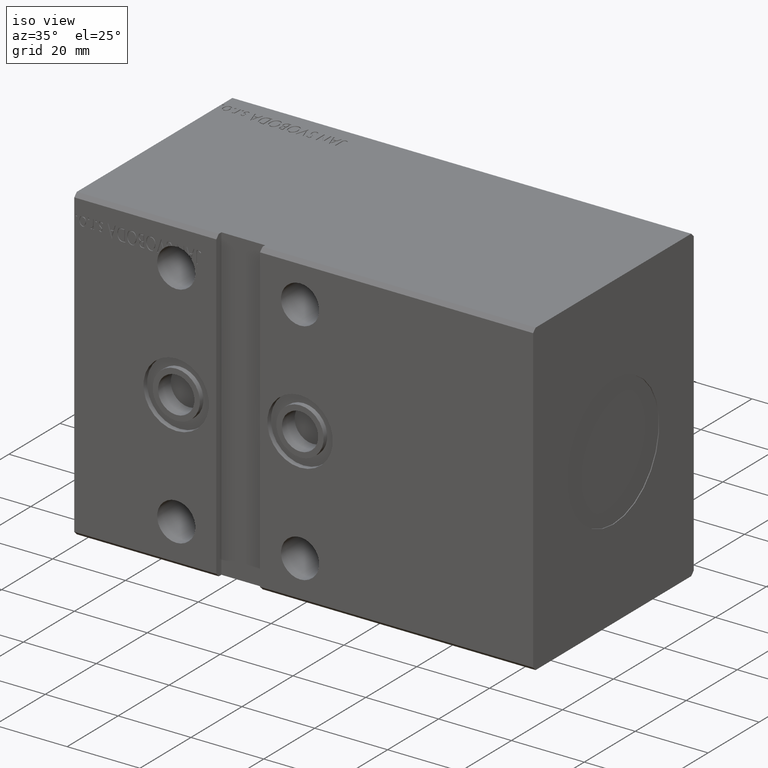
[diagram: clean part render]
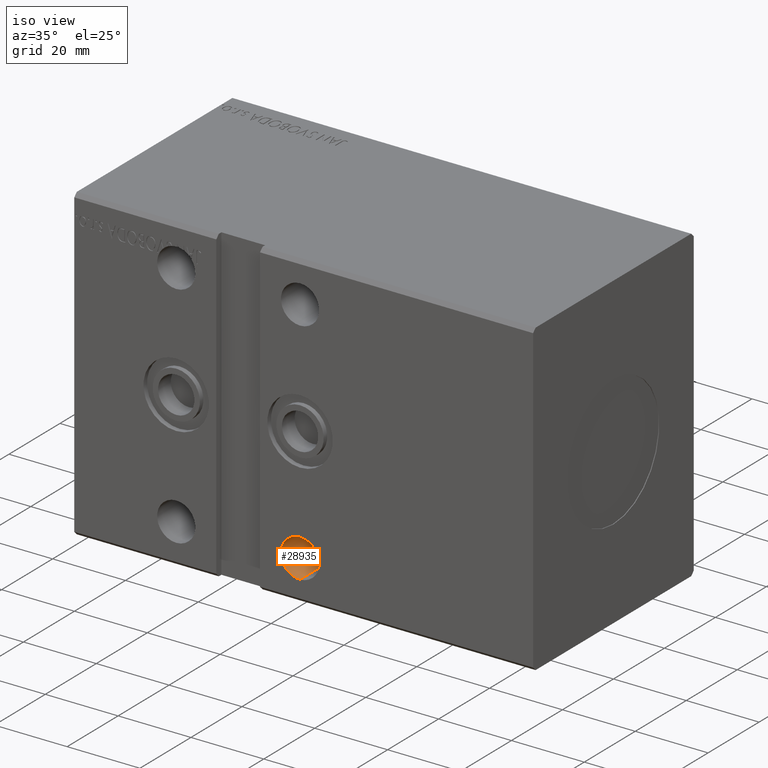
[diagram: same view with one face highlighted and labeled with its STEP entity id]
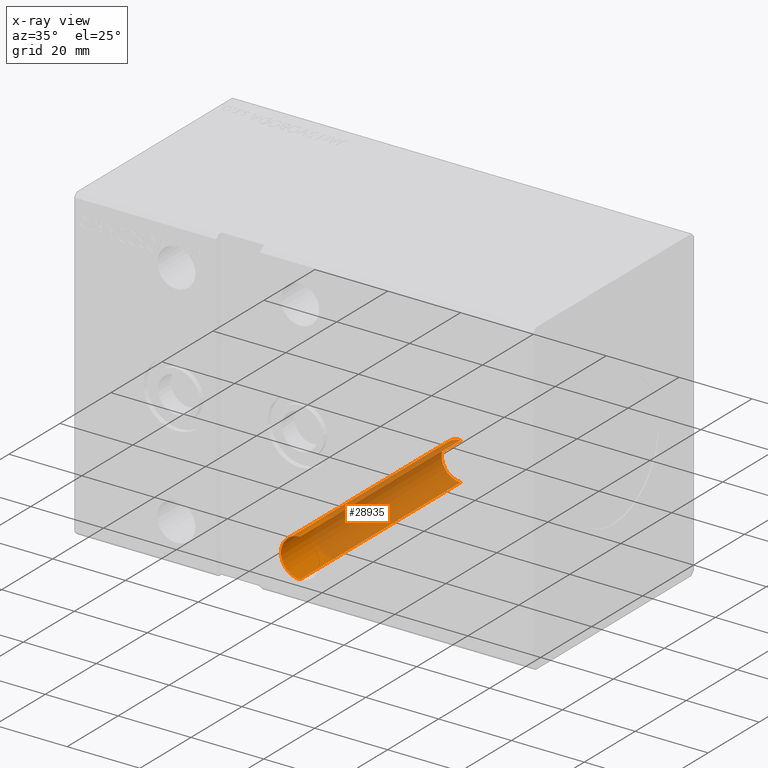
[diagram: x-ray of the same camera — body ghosted, the highlighted face saturated]
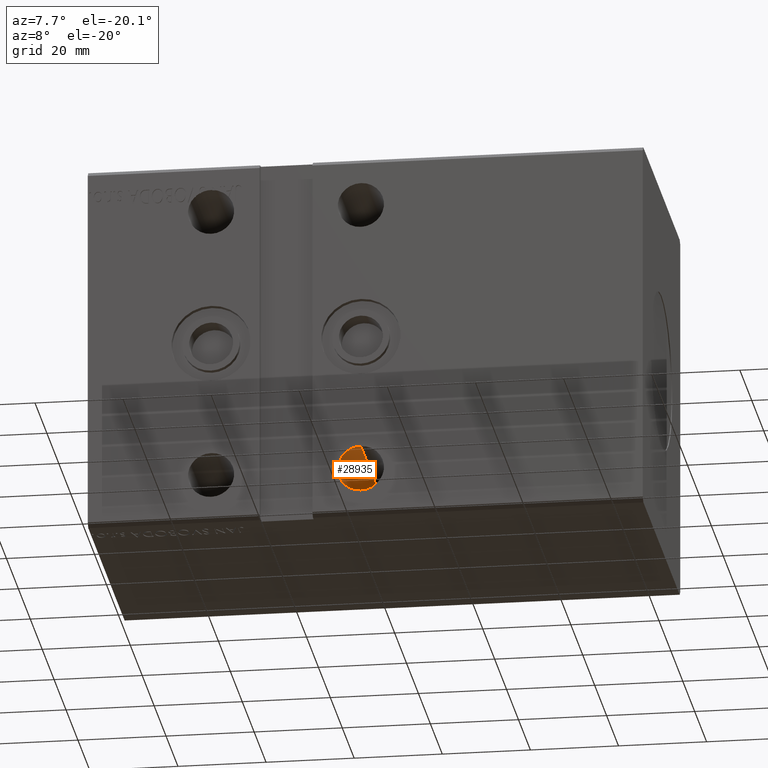
[diagram: same view with one face highlighted and labeled with its STEP entity id]
A machine part, iso view. The second image highlights one B-rep face of the part: STEP entity #28935.
The next image is the same camera in x-ray: the body ghosted, the highlighted face saturated — about 78% of this face is hidden behind the body in this view.
A second angle (auxiliary view) of the same face is appended — the face is thin or edge-on in the first view.
In plain terms, the highlighted cylindrical surface (edge-blend (fillet) strip) has radius 5.25 mm, axis along (-0, -1, -0).
Its self-contained STEP definition (entity closure, byte-faithful):
#15 = EDGE_CURVE ( 'NONE', #345, #18154, #15213, .T. ) ;
#345 = VERTEX_POINT ( 'NONE', #14562 ) ;
#1273 = EDGE_LOOP ( 'NONE', ( #1948, #5811, #20054, #38767 ) ) ;
#1948 = ORIENTED_EDGE ( 'NONE', *, *, #6388, .F. ) ;
#3715 = CIRCLE ( 'NONE', #26671, 5.249999999999997335 ) ;
#4119 = EDGE_CURVE ( 'NONE', #18154, #28999, #18899, .T. ) ;
#5527 = CARTESIAN_POINT ( 'NONE',  ( 62.00000000000000711, 31.50000000000002842, -26.24999999999999645 ) ) ;
#5589 = EDGE_CURVE ( 'NONE', #25466, #28999, #12370, .T. ) ;
#5811 = ORIENTED_EDGE ( 'NONE', *, *, #5589, .T. ) ;
#6388 = EDGE_CURVE ( 'NONE', #25466, #345, #3715, .T. ) ;
#6926 = AXIS2_PLACEMENT_3D ( 'NONE', #24356, #21490, #9356 ) ;
#8554 = CYLINDRICAL_SURFACE ( 'NONE', #6926, 5.249999999999997335 ) ;
#8660 = DIRECTION ( 'NONE',  ( -0.000000000000000000, -1.000000000000000000, -5.507058653894625853E-17 ) ) ;
#9356 = DIRECTION ( 'NONE',  ( 0.000000000000000000, 0.000000000000000000, -1.000000000000000000 ) ) ;
#12235 = VECTOR ( 'NONE', #25717, 1000.000000000000000 ) ;
#12261 = VECTOR ( 'NONE', #8660, 1000.000000000000000 ) ;
#12370 = LINE ( 'NONE', #22027, #12235 ) ;
#14562 = CARTESIAN_POINT ( 'NONE',  ( 62.00000000000000711, 31.50000000000002842, -36.74999999999999289 ) ) ;
#15213 = LINE ( 'NONE', #27756, #12261 ) ;
#15559 = DIRECTION ( 'NONE',  ( 0.000000000000000000, 0.000000000000000000, -1.000000000000000000 ) ) ;
#18154 = VERTEX_POINT ( 'NONE', #38947 ) ;
#18899 = CIRCLE ( 'NONE', #26784, 5.249999999999997335 ) ;
#20054 = ORIENTED_EDGE ( 'NONE', *, *, #4119, .F. ) ;
#21490 = DIRECTION ( 'NONE',  ( -0.000000000000000000, -1.000000000000000000, -5.507058653894625853E-17 ) ) ;
#22027 = CARTESIAN_POINT ( 'NONE',  ( 62.00000000000000711, 31.50000000000002842, -26.24999999999999645 ) ) ;
#24356 = CARTESIAN_POINT ( 'NONE',  ( 62.00000000000000711, 31.50000000000002842, -31.49999999999999289 ) ) ;
#24991 = CARTESIAN_POINT ( 'NONE',  ( 62.00000000000000711, -31.50000000000000000, -31.50000000000000000 ) ) ;
#25466 = VERTEX_POINT ( 'NONE', #5527 ) ;
#25717 = DIRECTION ( 'NONE',  ( -0.000000000000000000, -1.000000000000000000, -5.507058653894625853E-17 ) ) ;
#26671 = AXIS2_PLACEMENT_3D ( 'NONE', #28505, #31188, #15559 ) ;
#26784 = AXIS2_PLACEMENT_3D ( 'NONE', #24991, #37529, #34663 ) ;
#27756 = CARTESIAN_POINT ( 'NONE',  ( 62.00000000000000711, 31.50000000000002842, -36.74999999999999289 ) ) ;
#27849 = FACE_OUTER_BOUND ( 'NONE', #1273, .T. ) ;
#28505 = CARTESIAN_POINT ( 'NONE',  ( 62.00000000000000711, 31.50000000000002842, -31.49999999999999289 ) ) ;
#28935 = ADVANCED_FACE ( 'NONE', ( #27849 ), #8554, .F. ) ;
#28999 = VERTEX_POINT ( 'NONE', #35043 ) ;
#31188 = DIRECTION ( 'NONE',  ( 0.000000000000000000, -1.000000000000000000, -5.507058653894625853E-17 ) ) ;
#34663 = DIRECTION ( 'NONE',  ( 0.000000000000000000, 0.000000000000000000, 1.000000000000000000 ) ) ;
#35043 = CARTESIAN_POINT ( 'NONE',  ( 62.00000000000000711, -31.50000000000000000, -26.25000000000000355 ) ) ;
#37529 = DIRECTION ( 'NONE',  ( -0.000000000000000000, 1.000000000000000000, 0.000000000000000000 ) ) ;
#38767 = ORIENTED_EDGE ( 'NONE', *, *, #15, .F. ) ;
#38947 = CARTESIAN_POINT ( 'NONE',  ( 62.00000000000000711, -31.50000000000000000, -36.75000000000000000 ) ) ;